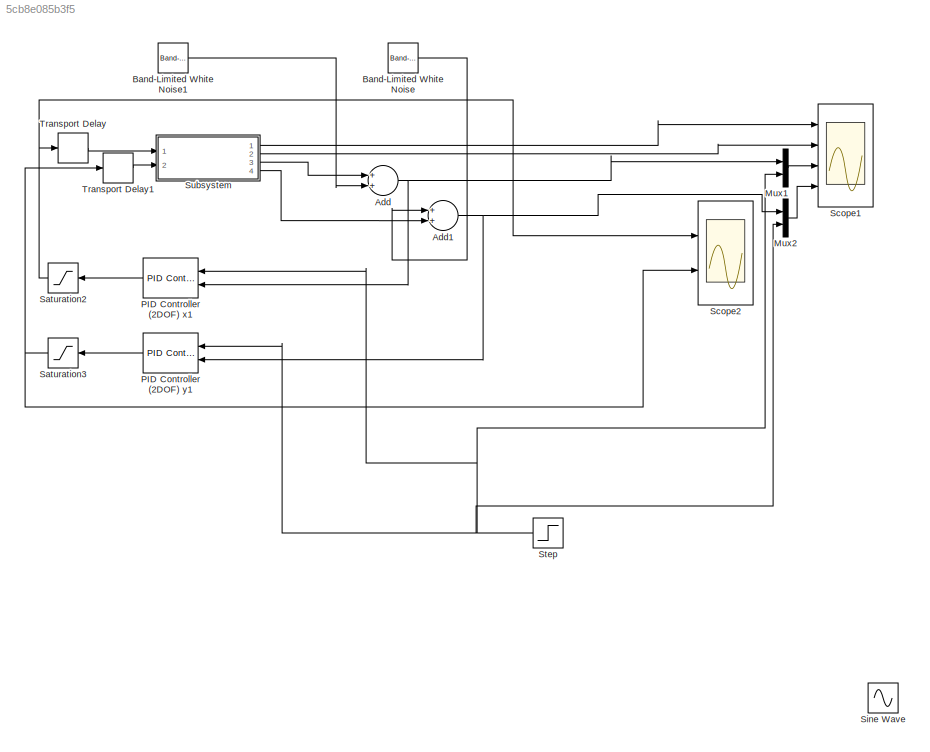
MODEL slx_5cb8e085b3f5
KIND model
CONFIG AbsTol = auto
CONFIG FixedStep = auto
CONFIG MaxStep = auto
CONFIG MinStep = auto
CONFIG RelTol = 1e-3
CONFIG SampleTimeConstraint = Unconstrained
CONFIG Solver = ode45
CONFIG SolverMode = Auto
CONFIG SolverName = ode45
CONFIG StartTime = 0.0
CONFIG StopTime = 15
BLOCK [Sum] Add
  InputSameDT = off
  OutDataTypeStr = Inherit: Inherit via internal rule
  Ports = [2, 1]
  SaturateOnIntegerOverflow = off
BLOCK [Sum] Add1
  InputSameDT = off
  OutDataTypeStr = Inherit: Inherit via internal rule
  Ports = [2, 1]
  SaturateOnIntegerOverflow = off
BLOCK [Reference] Band-Limited White Noise  REF=simulink/Sources/Band-Limited
White Noise
  Cov = est_error
  Ports = [0, 1]
  SourceBlock = simulink/Sources/Band-Limited\nWhite Noise
  SourceType = Band-Limited White Noise.
  Ts = h
  VectorParams1D = on
  seed = [341]
BLOCK [Reference] Band-Limited White Noise1  REF=simulink/Sources/Band-Limited
White Noise
  Cov = est_error
  Ports = [0, 1]
  SourceBlock = simulink/Sources/Band-Limited\nWhite Noise
  SourceType = Band-Limited White Noise.
  Ts = h
  VectorParams1D = on
  seed = [23341]
BLOCK [Mux] Mux1
  DisplayOption = bar
  Inputs = 2
  Ports = [2, 1]
BLOCK [Mux] Mux2
  DisplayOption = bar
  Inputs = 2
  Ports = [2, 1]
BLOCK [Reference] PID Controller (2DOF) x1  REF=simulink/Continuous/PID Controller (2DOF)
  AntiWindupMode = none
  Controller = PID
  ControllerParametersSource = internal
  D = 1
  DGainOutDataTypeStr = Inherit: Inherit via internal rule
  DOutDataTypeStr = Inherit: Inherit via internal rule
  DOutMax = []
  DOutMin = []
  DParamDataTypeStr = Inherit: Inherit via internal rule
  DParamMax = []
  DParamMin = []
  DProdOutDataTypeStr = Inherit: Inherit via internal rule
  DifferentiatorICPrevScaledInput = 0
  DifferentiatorOutDataTypeStr = Inherit: Inherit via internal rule
  DifferentiatorOutMax = []
  DifferentiatorOutMin = []
  ExternalReset = none
  FilterContinuousStateAttributes = ''
  FilterMethod = Forward Euler
  FilterOutDataTypeStr = Inherit: Inherit via internal rule
  FilterOutMax = []
  FilterOutMin = []
  FilterRTWStateStorageClass = Auto
  FilterStateMustResolveToSignalObject = off
  Form = Parallel
  I = .1
  IGainOutDataTypeStr = Inherit: Inherit via internal rule
  IOutDataTypeStr = Inherit: Inherit via internal rule
  IOutMax = []
  IOutMin = []
  IParamDataTypeStr = Inherit: Inherit via internal rule
  IParamMax = []
  IParamMin = []
  IProdOutDataTypeStr = Inherit: Inherit via internal rule
  IgnoreLimit = off
  InitialConditionForFilter = 0
  InitialConditionForIntegrator = 0
  InitialConditionSource = internal
  IntegratorContinuousStateAttributes = ''
  IntegratorMethod = Forward Euler
  IntegratorOutDataTypeStr = Inherit: Inherit via internal rule
  IntegratorOutMax = []
  IntegratorOutMin = []
  IntegratorRTWStateStorageClass = Auto
  IntegratorStateMustResolveToSignalObject = off
  Kb = 1
  KbOutDataTypeStr = Inherit: Inherit via internal rule
  KbOutMax = []
  KbOutMin = []
  KbParamDataTypeStr = Inherit: Inherit via internal rule
  KbParamMax = []
  KbParamMin = []
  Kt = 1
  KtOutDataTypeStr = Inherit: Inherit via internal rule
  KtOutMax = []
  KtOutMin = []
  KtParamDataTypeStr = Inherit: Inherit via internal rule
  KtParamMax = []
  KtParamMin = []
  LimitOutput = off
  LinearizeAsGain = on
  LockScale = off
  LowerSaturationLimit = -inf
  N = 100
  NGainOutDataTypeStr = Inherit: Inherit via internal rule
  NOutDataTypeStr = Inherit: Inherit via internal rule
  NOutMax = []
  NOutMin = []
  NParamDataTypeStr = Inherit: Inherit via internal rule
  NParamMax = []
  NParamMin = []
  NProdOutDataTypeStr = Inherit: Inherit via internal rule
  P = 0.1
  PGainOutDataTypeStr = Inherit: Inherit via internal rule
  POutDataTypeStr = Inherit: Inherit via internal rule
  POutMax = []
  POutMin = []
  PParamDataTypeStr = Inherit: Inherit via internal rule
  PParamMax = []
  PParamMin = []
  PProdOutDataTypeStr = Inherit: Inherit via internal rule
  Ports = [2, 1]
  RndMeth = Floor
  SampleTime = -1
  SaturateOnIntegerOverflow = off
  SaturationOutDataTypeStr = Inherit: Same as input
  SaturationOutMax = []
  SaturationOutMin = []
  SourceBlock = simulink/Continuous/PID Controller (2DOF)
  SourceType = PID 2dof
  Sum1AccumDataTypeStr = Inherit: Inherit via internal rule
  Sum1OutDataTypeStr = Inherit: Inherit via internal rule
  Sum1OutMax = []
  Sum1OutMin = []
  Sum2AccumDataTypeStr = Inherit: Inherit via internal rule
  Sum2OutDataTypeStr = Inherit: Inherit via internal rule
  Sum2OutMax = []
  Sum2OutMin = []
  Sum3AccumDataTypeStr = Inherit: Inherit via internal rule
  Sum3OutDataTypeStr = Inherit: Inherit via internal rule
  Sum3OutMax = []
  Sum3OutMin = []
  SumAccumDataTypeStr = Inherit: Inherit via internal rule
  SumDAccumDataTypeStr = Inherit: Inherit via internal rule
  SumDOutDataTypeStr = Inherit: Inherit via internal rule
  SumDOutMax = []
  SumDOutMin = []
  SumI1AccumDataTypeStr = Inherit: Inherit via internal rule
  SumI1OutDataTypeStr = Inherit: Inherit via internal rule
  SumI1OutMax = []
  SumI1OutMin = []
  SumI2AccumDataTypeStr = Inherit: Inherit via internal rule
  SumI2OutDataTypeStr = Inherit: Inherit via internal rule
  SumI2OutMax = []
  SumI2OutMin = []
  SumI3AccumDataTypeStr = Inherit: Inherit via internal rule
  SumI3OutDataTypeStr = Inherit: Inherit via internal rule
  SumI3OutMax = []
  SumI3OutMin = []
  SumOutDataTypeStr = Inherit: Inherit via internal rule
  SumOutMax = []
  SumOutMin = []
  TimeDomain = Continuous-time
  TrackingMode = off
  UpperSaturationLimit = inf
  UseFilter = on
  ZeroCross = on
  b = 1
  bGainOutDataTypeStr = Inherit: Inherit via internal rule
  bOutDataTypeStr = Inherit: Inherit via internal rule
  bOutMax = []
  bOutMin = []
  bParamDataTypeStr = Inherit: Inherit via internal rule
  bParamMax = []
  bParamMin = []
  bProdOutDataTypeStr = Inherit: Inherit via internal rule
  c = 1
  cGainOutDataTypeStr = Inherit: Inherit via internal rule
  cOutDataTypeStr = Inherit: Inherit via internal rule
  cOutMax = []
  cOutMin = []
  cParamDataTypeStr = Inherit: Inherit via internal rule
  cParamMax = []
  cParamMin = []
  cProdOutDataTypeStr = Inherit: Inherit via internal rule
BLOCK [Reference] PID Controller (2DOF) y1  REF=simulink/Continuous/PID Controller (2DOF)
  AntiWindupMode = none
  Controller = PID
  ControllerParametersSource = internal
  D = 1
  DGainOutDataTypeStr = Inherit: Inherit via internal rule
  DOutDataTypeStr = Inherit: Inherit via internal rule
  DOutMax = []
  DOutMin = []
  DParamDataTypeStr = Inherit: Inherit via internal rule
  DParamMax = []
  DParamMin = []
  DProdOutDataTypeStr = Inherit: Inherit via internal rule
  DifferentiatorICPrevScaledInput = 0
  DifferentiatorOutDataTypeStr = Inherit: Inherit via internal rule
  DifferentiatorOutMax = []
  DifferentiatorOutMin = []
  ExternalReset = none
  FilterContinuousStateAttributes = ''
  FilterMethod = Forward Euler
  FilterOutDataTypeStr = Inherit: Inherit via internal rule
  FilterOutMax = []
  FilterOutMin = []
  FilterRTWStateStorageClass = Auto
  FilterStateMustResolveToSignalObject = off
  Form = Parallel
  I = 1
  IGainOutDataTypeStr = Inherit: Inherit via internal rule
  IOutDataTypeStr = Inherit: Inherit via internal rule
  IOutMax = []
  IOutMin = []
  IParamDataTypeStr = Inherit: Inherit via internal rule
  IParamMax = []
  IParamMin = []
  IProdOutDataTypeStr = Inherit: Inherit via internal rule
  IgnoreLimit = off
  InitialConditionForFilter = 0
  InitialConditionForIntegrator = 0
  InitialConditionSource = internal
  IntegratorContinuousStateAttributes = ''
  IntegratorMethod = Forward Euler
  IntegratorOutDataTypeStr = Inherit: Inherit via internal rule
  IntegratorOutMax = []
  IntegratorOutMin = []
  IntegratorRTWStateStorageClass = Auto
  IntegratorStateMustResolveToSignalObject = off
  Kb = 1
  KbOutDataTypeStr = Inherit: Inherit via internal rule
  KbOutMax = []
  KbOutMin = []
  KbParamDataTypeStr = Inherit: Inherit via internal rule
  KbParamMax = []
  KbParamMin = []
  Kt = 1
  KtOutDataTypeStr = Inherit: Inherit via internal rule
  KtOutMax = []
  KtOutMin = []
  KtParamDataTypeStr = Inherit: Inherit via internal rule
  KtParamMax = []
  KtParamMin = []
  LimitOutput = off
  LinearizeAsGain = on
  LockScale = off
  LowerSaturationLimit = -inf
  N = 100
  NGainOutDataTypeStr = Inherit: Inherit via internal rule
  NOutDataTypeStr = Inherit: Inherit via internal rule
  NOutMax = []
  NOutMin = []
  NParamDataTypeStr = Inherit: Inherit via internal rule
  NParamMax = []
  NParamMin = []
  NProdOutDataTypeStr = Inherit: Inherit via internal rule
  P = 2
  PGainOutDataTypeStr = Inherit: Inherit via internal rule
  POutDataTypeStr = Inherit: Inherit via internal rule
  POutMax = []
  POutMin = []
  PParamDataTypeStr = Inherit: Inherit via internal rule
  PParamMax = []
  PParamMin = []
  PProdOutDataTypeStr = Inherit: Inherit via internal rule
  Ports = [2, 1]
  RndMeth = Floor
  SampleTime = -1
  SaturateOnIntegerOverflow = off
  SaturationOutDataTypeStr = Inherit: Same as input
  SaturationOutMax = []
  SaturationOutMin = []
  SourceBlock = simulink/Continuous/PID Controller (2DOF)
  SourceType = PID 2dof
  Sum1AccumDataTypeStr = Inherit: Inherit via internal rule
  Sum1OutDataTypeStr = Inherit: Inherit via internal rule
  Sum1OutMax = []
  Sum1OutMin = []
  Sum2AccumDataTypeStr = Inherit: Inherit via internal rule
  Sum2OutDataTypeStr = Inherit: Inherit via internal rule
  Sum2OutMax = []
  Sum2OutMin = []
  Sum3AccumDataTypeStr = Inherit: Inherit via internal rule
  Sum3OutDataTypeStr = Inherit: Inherit via internal rule
  Sum3OutMax = []
  Sum3OutMin = []
  SumAccumDataTypeStr = Inherit: Inherit via internal rule
  SumDAccumDataTypeStr = Inherit: Inherit via internal rule
  SumDOutDataTypeStr = Inherit: Inherit via internal rule
  SumDOutMax = []
  SumDOutMin = []
  SumI1AccumDataTypeStr = Inherit: Inherit via internal rule
  SumI1OutDataTypeStr = Inherit: Inherit via internal rule
  SumI1OutMax = []
  SumI1OutMin = []
  SumI2AccumDataTypeStr = Inherit: Inherit via internal rule
  SumI2OutDataTypeStr = Inherit: Inherit via internal rule
  SumI2OutMax = []
  SumI2OutMin = []
  SumI3AccumDataTypeStr = Inherit: Inherit via internal rule
  SumI3OutDataTypeStr = Inherit: Inherit via internal rule
  SumI3OutMax = []
  SumI3OutMin = []
  SumOutDataTypeStr = Inherit: Inherit via internal rule
  SumOutMax = []
  SumOutMin = []
  TimeDomain = Continuous-time
  TrackingMode = off
  UpperSaturationLimit = inf
  UseFilter = on
  ZeroCross = on
  b = 1
  bGainOutDataTypeStr = Inherit: Inherit via internal rule
  bOutDataTypeStr = Inherit: Inherit via internal rule
  bOutMax = []
  bOutMin = []
  bParamDataTypeStr = Inherit: Inherit via internal rule
  bParamMax = []
  bParamMin = []
  bProdOutDataTypeStr = Inherit: Inherit via internal rule
  c = 1
  cGainOutDataTypeStr = Inherit: Inherit via internal rule
  cOutDataTypeStr = Inherit: Inherit via internal rule
  cOutMax = []
  cOutMin = []
  cParamDataTypeStr = Inherit: Inherit via internal rule
  cParamMax = []
  cParamMin = []
  cProdOutDataTypeStr = Inherit: Inherit via internal rule
BLOCK [Saturate] Saturation2
  InputPortMap = u0
  LowerLimit = -10
  Ports = [1, 1]
  UpperLimit = 10
BLOCK [Saturate] Saturation3
  InputPortMap = u0
  LowerLimit = -10
  Ports = [1, 1]
  UpperLimit = 10
BLOCK [Scope] Scope1
  DataFormat = StructureWithTime
  Floating = off
  LimitDataPoints = off
  NumInputPorts = 4
  Ports = [4]
  SaveName = plant
  SaveToWorkspace = on
  TimeRange = 500
  YMax = 5~5~10~10
  YMin = -5~-5~0~0
BLOCK [Scope] Scope2
  DataFormat = StructureWithTime
  Floating = off
  LimitDataPoints = off
  NumInputPorts = 2
  Ports = [2]
  SaveName = ScopeData2
  SaveToWorkspace = on
  TimeRange = 10
  YMax = 1~1
  YMin = -1~-1
BLOCK [Sin] Sine Wave
  Amplitude = 3
  Ports = [0, 1]
  SampleTime = 0
BLOCK [Step] Step
  After = 3
  SampleTime = 0
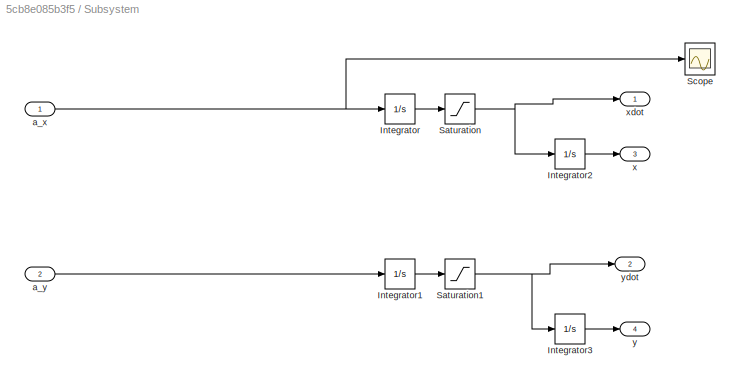
BLOCK [SubSystem] Subsystem
  Ports = [2, 4]
  RequestExecContextInheritance = off
BLOCK [Integrator] Subsystem/Integrator
  Ports = [1, 1]
BLOCK [Integrator] Subsystem/Integrator1
  Ports = [1, 1]
BLOCK [Integrator] Subsystem/Integrator2
  Ports = [1, 1]
BLOCK [Integrator] Subsystem/Integrator3
  Ports = [1, 1]
BLOCK [Saturate] Subsystem/Saturation
  InputPortMap = u0
  LowerLimit = -10
  Ports = [1, 1]
  UpperLimit = 10
BLOCK [Saturate] Subsystem/Saturation1
  InputPortMap = u0
  LowerLimit = -10
  Ports = [1, 1]
  UpperLimit = 10
BLOCK [Scope] Subsystem/Scope
  Floating = off
  NumInputPorts = 1
  Ports = [1]
  SaveName = ScopeData3
BLOCK [Inport] Subsystem/a_x
  IconDisplay = Port number
BLOCK [Inport] Subsystem/a_y
  IconDisplay = Port number
  Port = 2
BLOCK [Outport] Subsystem/x
  IconDisplay = Port number
  Port = 3
BLOCK [Outport] Subsystem/xdot
  IconDisplay = Port number
BLOCK [Outport] Subsystem/y
  IconDisplay = Port number
  Port = 4
BLOCK [Outport] Subsystem/ydot
  IconDisplay = Port number
  Port = 2
BLOCK [TransportDelay] Transport Delay
  DelayTime = delay
  Ports = [1, 1]
BLOCK [TransportDelay] Transport Delay1
  DelayTime = delay
  Ports = [1, 1]
NET Add1:1 -> Mux2:1, PID Controller (2DOF) y1:2
NET Add:1 -> Mux1:1, PID Controller (2DOF) x1:2
LINE Band-Limited White Noise1:1 -> Add:2
LINE Band-Limited White Noise:1 -> Add1:1
LINE Mux1:1 -> Scope1:3
LINE Mux2:1 -> Scope1:4
LINE PID Controller (2DOF) x1:1 -> Saturation2:1
LINE PID Controller (2DOF) y1:1 -> Saturation3:1
NET Saturation2:1 -> Scope2:1, Transport Delay:1
NET Saturation3:1 -> Scope2:2, Transport Delay1:1
NET Step:1 -> Mux1:2, Mux2:2, PID Controller (2DOF) x1:1, PID Controller (2DOF) y1:1
LINE Subsystem/Integrator1:1 -> Subsystem/Saturation1:1
LINE Subsystem/Integrator2:1 -> Subsystem/x:1
LINE Subsystem/Integrator3:1 -> Subsystem/y:1
LINE Subsystem/Integrator:1 -> Subsystem/Saturation:1
NET Subsystem/Saturation1:1 -> Subsystem/Integrator3:1, Subsystem/ydot:1
NET Subsystem/Saturation:1 -> Subsystem/Integrator2:1, Subsystem/xdot:1
NET Subsystem/a_x:1 -> Subsystem/Integrator:1, Subsystem/Scope:1
LINE Subsystem/a_y:1 -> Subsystem/Integrator1:1
LINE Subsystem:1 -> Scope1:1
LINE Subsystem:2 -> Scope1:2
LINE Subsystem:3 -> Add:1
LINE Subsystem:4 -> Add1:2
LINE Transport Delay1:1 -> Subsystem:2
LINE Transport Delay:1 -> Subsystem:1
note: NET lines group one-source signal fan-out (src -> all destinations, sorted); 1:1 wires keep LINE
